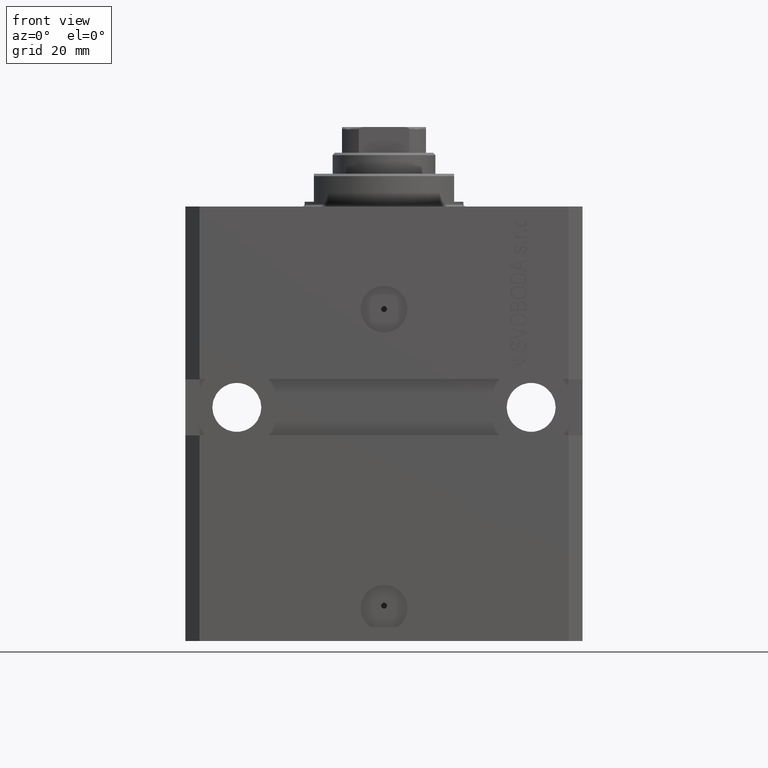
[diagram: clean part render]
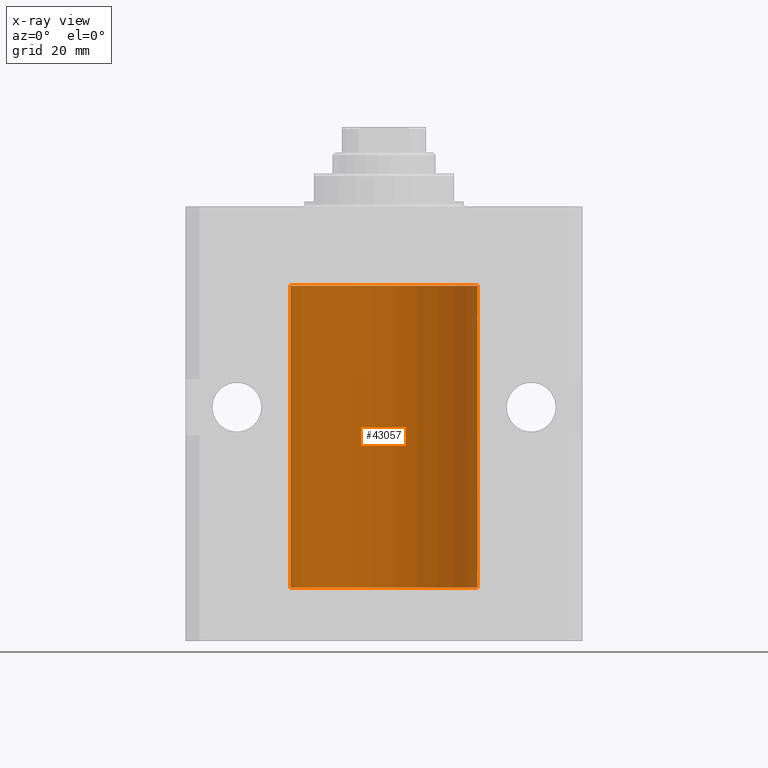
[diagram: x-ray — body ghosted, one internal face saturated and labeled with its STEP entity id]
A machine part, front view, then the same camera in x-ray: the body is ghosted and one INTERNAL B-rep face — a face not visible from any outside direction — is saturated and labeled: STEP entity #43057.
In plain terms, the highlighted cylindrical surface (partial cylindrical patch) has radius 20 mm, axis along (0, 0, 1).
Its self-contained STEP definition (entity closure, byte-faithful):
#103 = ORIENTED_EDGE ( 'NONE', *, *, #19019, .F. ) ;
#970 = EDGE_CURVE ( 'NONE', #16208, #44966, #6001, .T. ) ;
#2117 = CARTESIAN_POINT ( 'NONE',  ( 20.00000000000010303, 3.555666340528858977E-13, -23.37499999999667111 ) ) ;
#2269 = CARTESIAN_POINT ( 'NONE',  ( 19.99999999999999645, 0.08261455565447825555, -79.62499999999997158 ) ) ;
#2323 = DIRECTION ( 'NONE',  ( -0.000000000000000000, -0.000000000000000000, 1.000000000000000000 ) ) ;
#2415 = EDGE_CURVE ( 'NONE', #18103, #47006, #8184, .T. ) ;
#2749 = CARTESIAN_POINT ( 'NONE',  ( 19.99766100389833312, 0.3150982863324784944, -79.54594438241281296 ) ) ;
#3774 = LINE ( 'NONE', #13886, #34616 ) ;
#4978 = LINE ( 'NONE', #15811, #43226 ) ;
#5052 = DIRECTION ( 'NONE',  ( -0.000000000000000000, -0.000000000000000000, 1.000000000000000000 ) ) ;
#5206 = ORIENTED_EDGE ( 'NONE', *, *, #2415, .T. ) ;
#5227 = CARTESIAN_POINT ( 'NONE',  ( 20.00000000000000000, 0.000000000000000000, -81.59999999999999432 ) ) ;
#5880 = B_SPLINE_CURVE_WITH_KNOTS ( 'NONE', 3,
 ( #28086, #42290, #24223, #9545, #45902, #46386, #42040, #9058 ),
 .UNSPECIFIED., .F., .F.,
 ( 4, 2, 2, 4 ),
 ( 1.013370767385449693E-18, 0.0002443247335684061339, 0.0004886494671368111836, 0.0009772989342736214998 ),
 .UNSPECIFIED. ) ;
#6001 = B_SPLINE_CURVE_WITH_KNOTS ( 'NONE', 3,
 ( #40553, #43934, #15274, #29952, #22716, #41252 ),
 .UNSPECIFIED., .F., .F.,
 ( 4, 2, 4 ),
 ( 0.0009772989342736221503, 0.001465726722058849005, 0.001954154509844075859 ),
 .UNSPECIFIED. ) ;
#8184 = B_SPLINE_CURVE_WITH_KNOTS ( 'NONE', 3,
 ( #8595, #12447, #42056, #16550, #34373, #2117 ),
 .UNSPECIFIED., .F., .F.,
 ( 4, 2, 4 ),
 ( 0.0009772989342736214998, 0.001465726722058845102, 0.001954154509844068920 ),
 .UNSPECIFIED. ) ;
#8386 = ORIENTED_EDGE ( 'NONE', *, *, #13484, .T. ) ;
#8595 = CARTESIAN_POINT ( 'NONE',  ( 19.99023198964909298, 0.6250000000081508134, -23.99999999999910472 ) ) ;
#8716 = ORIENTED_EDGE ( 'NONE', *, *, #30601, .T. ) ;
#8758 = AXIS2_PLACEMENT_3D ( 'NONE', #13255, #9152, #38532 ) ;
#9058 = CARTESIAN_POINT ( 'NONE',  ( 19.99023198964909298, 0.6250000000081508134, -23.99999999999910472 ) ) ;
#9152 = DIRECTION ( 'NONE',  ( 0.000000000000000000, 0.000000000000000000, 1.000000000000000000 ) ) ;
#9439 = VERTEX_POINT ( 'NONE', #24349 ) ;
#9545 = CARTESIAN_POINT ( 'NONE',  ( 19.99766100389832957, 0.3150982863324730543, -24.54594438241278453 ) ) ;
#9931 = CARTESIAN_POINT ( 'NONE',  ( 20.00000000000000000, 0.000000000000000000, -17.00000000000000000 ) ) ;
#10404 = B_SPLINE_CURVE_WITH_KNOTS ( 'NONE', 3,
 ( #38840, #2269, #20553, #2749, #24865, #32578, #39550, #13557 ),
 .UNSPECIFIED., .F., .F.,
 ( 4, 2, 2, 4 ),
 ( 3.944467879762244826E-18, 0.0002443247335684012008, 0.0004886494671367983900, 0.0009772989342736221503 ),
 .UNSPECIFIED. ) ;
#11612 = VERTEX_POINT ( 'NONE', #21943 ) ;
#11862 = CIRCLE ( 'NONE', #8758, 20.00000000000000000 ) ;
#12447 = CARTESIAN_POINT ( 'NONE',  ( 19.99023198964935588, 0.6249999999995746736, -23.83696384779806721 ) ) ;
#13255 = CARTESIAN_POINT ( 'NONE',  ( 0.000000000000000000, 0.000000000000000000, -17.00000000000000000 ) ) ;
#13484 = EDGE_CURVE ( 'NONE', #44966, #23301, #3774, .T. ) ;
#13557 = CARTESIAN_POINT ( 'NONE',  ( 19.99023198964909298, 0.6250000000081574747, -78.99999999999911893 ) ) ;
#13817 = CARTESIAN_POINT ( 'NONE',  ( 19.99023198964909298, 0.6250000000081508134, -23.99999999999910472 ) ) ;
#13886 = CARTESIAN_POINT ( 'NONE',  ( 20.00000000000000000, 0.000000000000000000, -81.59999999999999432 ) ) ;
#14346 = EDGE_CURVE ( 'NONE', #28311, #39848, #27823, .T. ) ;
#15093 = ORIENTED_EDGE ( 'NONE', *, *, #28496, .T. ) ;
#15274 = CARTESIAN_POINT ( 'NONE',  ( 19.99253733128256627, 0.5586305947779004466, -78.67476036735259015 ) ) ;
#15811 = CARTESIAN_POINT ( 'NONE',  ( -20.00000000000000000, 2.449293598294706513E-15, -81.59999999999999432 ) ) ;
#16208 = VERTEX_POINT ( 'NONE', #44535 ) ;
#16550 = CARTESIAN_POINT ( 'NONE',  ( 19.99769474220010679, 0.3253030616682399678, -23.44140633897632142 ) ) ;
#17811 = AXIS2_PLACEMENT_3D ( 'NONE', #43039, #17986, #32910 ) ;
#17976 = ORIENTED_EDGE ( 'NONE', *, *, #970, .T. ) ;
#17986 = DIRECTION ( 'NONE',  ( 0.000000000000000000, 0.000000000000000000, 1.000000000000000000 ) ) ;
#18103 = VERTEX_POINT ( 'NONE', #13817 ) ;
#19019 = EDGE_CURVE ( 'NONE', #28311, #9439, #39283, .T. ) ;
#19260 = FACE_OUTER_BOUND ( 'NONE', #40691, .T. ) ;
#19723 = LINE ( 'NONE', #34416, #42433 ) ;
#20553 = CARTESIAN_POINT ( 'NONE',  ( 19.99947351343144319, 0.1636818329565372654, -79.60872855715646779 ) ) ;
#20558 = EDGE_CURVE ( 'NONE', #39848, #16208, #10404, .T. ) ;
#21351 = DIRECTION ( 'NONE',  ( -0.000000000000000000, -0.000000000000000000, 1.000000000000000000 ) ) ;
#21572 = CARTESIAN_POINT ( 'NONE',  ( 20.00000000000010303, 3.555666352936568165E-13, -78.37499999999667466 ) ) ;
#21943 = CARTESIAN_POINT ( 'NONE',  ( -20.00000000000000000, 2.449293598294706513E-15, -17.00000000000000000 ) ) ;
#22716 = CARTESIAN_POINT ( 'NONE',  ( 19.99999999999999645, 0.1631318418333158327, -78.37500000000015632 ) ) ;
#23301 = VERTEX_POINT ( 'NONE', #34138 ) ;
#24223 = CARTESIAN_POINT ( 'NONE',  ( 19.99947351343144675, 0.1636818329565319363, -24.60872855715643936 ) ) ;
#24349 = CARTESIAN_POINT ( 'NONE',  ( -20.00000000000000000, 2.449293598294706513E-15, -81.59999999999999432 ) ) ;
#24834 = EDGE_CURVE ( 'NONE', #47006, #36826, #19723, .T. ) ;
#24865 = CARTESIAN_POINT ( 'NONE',  ( 19.99638788807192924, 0.3844440352705359998, -79.49948058986481669 ) ) ;
#25012 = EDGE_CURVE ( 'NONE', #9439, #11612, #4978, .T. ) ;
#27823 = LINE ( 'NONE', #42504, #37727 ) ;
#28086 = CARTESIAN_POINT ( 'NONE',  ( 20.00000000000000000, 1.042771508482559297E-15, -24.62500000000000000 ) ) ;
#28311 = VERTEX_POINT ( 'NONE', #5227 ) ;
#28496 = EDGE_CURVE ( 'NONE', #23301, #18103, #5880, .T. ) ;
#29952 = CARTESIAN_POINT ( 'NONE',  ( 19.99769474220011034, 0.3253030616682413001, -78.44140633897630721 ) ) ;
#30569 = DIRECTION ( 'NONE',  ( 1.000000000000000000, 0.000000000000000000, 0.000000000000000000 ) ) ;
#30601 = EDGE_CURVE ( 'NONE', #36826, #11612, #11862, .T. ) ;
#30620 = AXIS2_PLACEMENT_3D ( 'NONE', #33954, #5052, #30569 ) ;
#30799 = DIRECTION ( 'NONE',  ( -0.000000000000000000, -0.000000000000000000, 1.000000000000000000 ) ) ;
#32578 = CARTESIAN_POINT ( 'NONE',  ( 19.99256353007439202, 0.5574106582031174151, -79.32639035180115172 ) ) ;
#32910 = DIRECTION ( 'NONE',  ( 1.000000000000000000, 0.000000000000000000, 0.000000000000000000 ) ) ;
#33229 = CARTESIAN_POINT ( 'NONE',  ( 20.00000000000010303, 3.555666340528858977E-13, -23.37499999999667111 ) ) ;
#33954 = CARTESIAN_POINT ( 'NONE',  ( 0.000000000000000000, 0.000000000000000000, -81.59999999999999432 ) ) ;
#34138 = CARTESIAN_POINT ( 'NONE',  ( 20.00000000000000000, 1.042771508482559297E-15, -24.62500000000000000 ) ) ;
#34373 = CARTESIAN_POINT ( 'NONE',  ( 19.99999999999999645, 0.1631318418333146114, -23.37500000000016698 ) ) ;
#34416 = CARTESIAN_POINT ( 'NONE',  ( 20.00000000000000000, 0.000000000000000000, -81.59999999999999432 ) ) ;
#34616 = VECTOR ( 'NONE', #21351, 1000.000000000000000 ) ;
#35117 = ORIENTED_EDGE ( 'NONE', *, *, #24834, .T. ) ;
#36826 = VERTEX_POINT ( 'NONE', #9931 ) ;
#37727 = VECTOR ( 'NONE', #2323, 1000.000000000000000 ) ;
#38532 = DIRECTION ( 'NONE',  ( 1.000000000000000000, 0.000000000000000000, 0.000000000000000000 ) ) ;
#38840 = CARTESIAN_POINT ( 'NONE',  ( 20.00000000000000000, -4.058908006348821872E-15, -79.62500000000000000 ) ) ;
#39283 = CIRCLE ( 'NONE', #17811, 20.00000000000000000 ) ;
#39550 = CARTESIAN_POINT ( 'NONE',  ( 19.99023198964934167, 0.6250000000002757794, -79.16311014829327064 ) ) ;
#39848 = VERTEX_POINT ( 'NONE', #40746 ) ;
#40553 = CARTESIAN_POINT ( 'NONE',  ( 19.99023198964909298, 0.6250000000081574747, -78.99999999999911893 ) ) ;
#40691 = EDGE_LOOP ( 'NONE', ( #44451, #103, #44924, #44833, #17976, #8386, #15093, #5206, #35117, #8716 ) ) ;
#40746 = CARTESIAN_POINT ( 'NONE',  ( 20.00000000000000000, -4.058908006348821872E-15, -79.62500000000000000 ) ) ;
#41252 = CARTESIAN_POINT ( 'NONE',  ( 20.00000000000010303, 3.555666352936568165E-13, -78.37499999999667466 ) ) ;
#42040 = CARTESIAN_POINT ( 'NONE',  ( 19.99023198964933812, 0.6250000000002681189, -24.16311014829328130 ) ) ;
#42056 = CARTESIAN_POINT ( 'NONE',  ( 19.99253733128256272, 0.5586305947778931191, -23.67476036735258305 ) ) ;
#42290 = CARTESIAN_POINT ( 'NONE',  ( 19.99999999999999645, 0.08261455565447869964, -24.62499999999998579 ) ) ;
#42433 = VECTOR ( 'NONE', #30799, 1000.000000000000000 ) ;
#42504 = CARTESIAN_POINT ( 'NONE',  ( 20.00000000000000000, 0.000000000000000000, -81.59999999999999432 ) ) ;
#43039 = CARTESIAN_POINT ( 'NONE',  ( 0.000000000000000000, 0.000000000000000000, -81.59999999999999432 ) ) ;
#43057 = ADVANCED_FACE ( 'NONE', ( #19260 ), #44547, .F. ) ;
#43226 = VECTOR ( 'NONE', #45414, 1000.000000000000000 ) ;
#43934 = CARTESIAN_POINT ( 'NONE',  ( 19.99023198964936299, 0.6249999999995806688, -78.83696384779808852 ) ) ;
#44451 = ORIENTED_EDGE ( 'NONE', *, *, #25012, .F. ) ;
#44535 = CARTESIAN_POINT ( 'NONE',  ( 19.99023198964909298, 0.6250000000081574747, -78.99999999999911893 ) ) ;
#44547 = CYLINDRICAL_SURFACE ( 'NONE', #30620, 20.00000000000000000 ) ;
#44833 = ORIENTED_EDGE ( 'NONE', *, *, #20558, .T. ) ;
#44924 = ORIENTED_EDGE ( 'NONE', *, *, #14346, .T. ) ;
#44966 = VERTEX_POINT ( 'NONE', #21572 ) ;
#45414 = DIRECTION ( 'NONE',  ( -0.000000000000000000, -0.000000000000000000, 1.000000000000000000 ) ) ;
#45902 = CARTESIAN_POINT ( 'NONE',  ( 19.99638788807192924, 0.3844440352705356112, -24.49948058986480603 ) ) ;
#46386 = CARTESIAN_POINT ( 'NONE',  ( 19.99256353007439202, 0.5574106582031151946, -24.32639035180115172 ) ) ;
#47006 = VERTEX_POINT ( 'NONE', #33229 ) ;